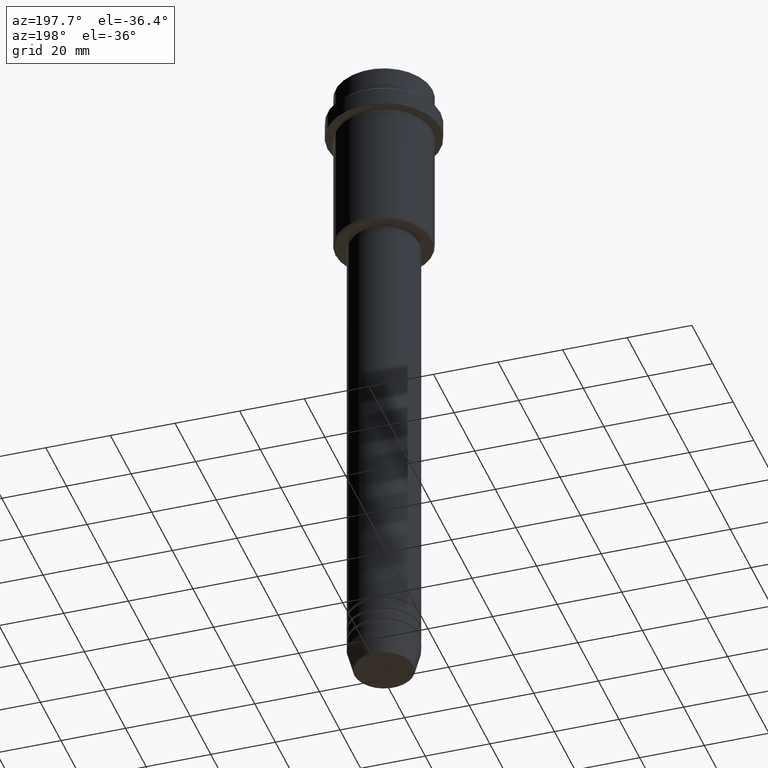
[diagram: clean part render]
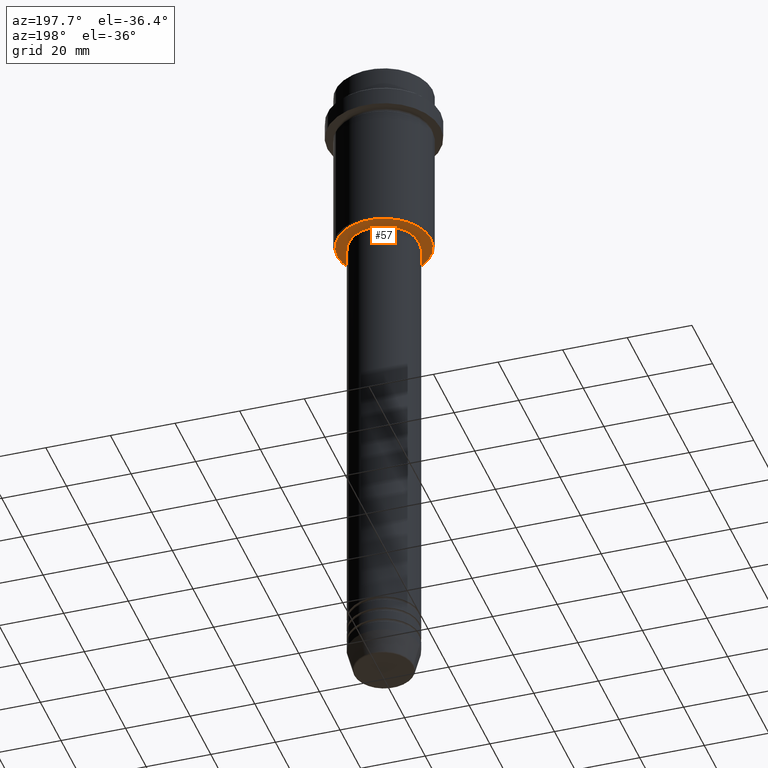
[diagram: same view with one face highlighted and labeled with its STEP entity id]
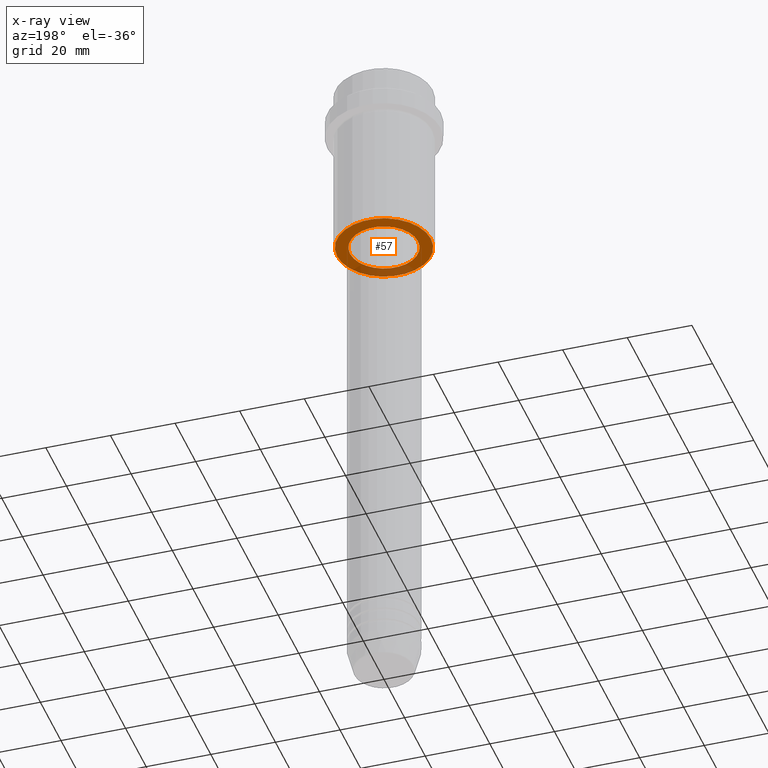
[diagram: x-ray of the same camera — body ghosted, the highlighted face saturated]
A machine part, auxiliary view. The second image highlights one B-rep face of the part: STEP entity #57.
The next image is the same camera in x-ray: the body ghosted, the highlighted face saturated — about 21% of this face is hidden behind the body in this view.
In plain terms, the highlighted planar face has unit normal (0, 0, -1).
Its self-contained STEP definition (entity closure, byte-faithful):
#5 = VERTEX_POINT ( 'NONE', #342 ) ;
#29 = ORIENTED_EDGE ( 'NONE', *, *, #176, .T. ) ;
#41 = DIRECTION ( 'NONE',  ( 1.000000000000000000, 0.000000000000000000, 0.000000000000000000 ) ) ;
#57 = ADVANCED_FACE ( 'NONE', ( #86, #757 ), #879, .T. ) ;
#59 = CARTESIAN_POINT ( 'NONE',  ( 0.000000000000000000, 0.000000000000000000, -55.00000000000002842 ) ) ;
#86 = FACE_OUTER_BOUND ( 'NONE', #1041, .T. ) ;
#111 = VERTEX_POINT ( 'NONE', #1075 ) ;
#153 = ORIENTED_EDGE ( 'NONE', *, *, #1343, .T. ) ;
#175 = DIRECTION ( 'NONE',  ( -0.000000000000000000, -0.000000000000000000, 1.000000000000000000 ) ) ;
#176 = EDGE_CURVE ( 'NONE', #111, #5, #759, .T. ) ;
#179 = CARTESIAN_POINT ( 'NONE',  ( 0.000000000000000000, 0.000000000000000000, -55.00000000000002842 ) ) ;
#241 = CARTESIAN_POINT ( 'NONE',  ( 0.000000000000000000, 0.000000000000000000, -55.00000000000002842 ) ) ;
#276 = CARTESIAN_POINT ( 'NONE',  ( 14.49999999999998401, 0.000000000000000000, -55.00000000000002842 ) ) ;
#282 = VERTEX_POINT ( 'NONE', #1395 ) ;
#342 = CARTESIAN_POINT ( 'NONE',  ( 10.49999999999999289, 0.000000000000000000, -55.00000000000002842 ) ) ;
#376 = AXIS2_PLACEMENT_3D ( 'NONE', #981, #966, #453 ) ;
#378 = CIRCLE ( 'NONE', #800, 10.49999999999999289 ) ;
#401 = CIRCLE ( 'NONE', #585, 14.49999999999998401 ) ;
#409 = DIRECTION ( 'NONE',  ( -1.000000000000000000, 0.000000000000000000, 0.000000000000000000 ) ) ;
#419 = DIRECTION ( 'NONE',  ( 0.000000000000000000, 0.000000000000000000, -1.000000000000000000 ) ) ;
#453 = DIRECTION ( 'NONE',  ( -1.000000000000000000, 0.000000000000000000, -0.000000000000000000 ) ) ;
#513 = CARTESIAN_POINT ( 'NONE',  ( 0.000000000000000000, 0.000000000000000000, -55.00000000000002842 ) ) ;
#576 = EDGE_LOOP ( 'NONE', ( #153, #29 ) ) ;
#577 = DIRECTION ( 'NONE',  ( -0.000000000000000000, -0.000000000000000000, 1.000000000000000000 ) ) ;
#585 = AXIS2_PLACEMENT_3D ( 'NONE', #59, #1265, #935 ) ;
#656 = DIRECTION ( 'NONE',  ( 1.000000000000000000, 0.000000000000000000, 0.000000000000000000 ) ) ;
#729 = CIRCLE ( 'NONE', #1231, 14.49999999999998401 ) ;
#757 = FACE_BOUND ( 'NONE', #576, .T. ) ;
#759 = CIRCLE ( 'NONE', #1194, 10.49999999999999289 ) ;
#788 = ORIENTED_EDGE ( 'NONE', *, *, #833, .T. ) ;
#800 = AXIS2_PLACEMENT_3D ( 'NONE', #241, #577, #656 ) ;
#833 = EDGE_CURVE ( 'NONE', #1095, #282, #729, .T. ) ;
#879 = PLANE ( 'NONE',  #376 ) ;
#935 = DIRECTION ( 'NONE',  ( -1.000000000000000000, 0.000000000000000000, 0.000000000000000000 ) ) ;
#966 = DIRECTION ( 'NONE',  ( 0.000000000000000000, 0.000000000000000000, -1.000000000000000000 ) ) ;
#977 = ORIENTED_EDGE ( 'NONE', *, *, #1190, .T. ) ;
#981 = CARTESIAN_POINT ( 'NONE',  ( 0.000000000000000000, 15.00000000000000000, -55.00000000000002842 ) ) ;
#1041 = EDGE_LOOP ( 'NONE', ( #788, #977 ) ) ;
#1075 = CARTESIAN_POINT ( 'NONE',  ( -10.49999999999999289, 1.285879139104720042E-15, -55.00000000000002842 ) ) ;
#1095 = VERTEX_POINT ( 'NONE', #276 ) ;
#1190 = EDGE_CURVE ( 'NONE', #282, #1095, #401, .T. ) ;
#1194 = AXIS2_PLACEMENT_3D ( 'NONE', #513, #175, #41 ) ;
#1231 = AXIS2_PLACEMENT_3D ( 'NONE', #179, #419, #409 ) ;
#1265 = DIRECTION ( 'NONE',  ( 0.000000000000000000, 0.000000000000000000, -1.000000000000000000 ) ) ;
#1343 = EDGE_CURVE ( 'NONE', #5, #111, #378, .T. ) ;
#1395 = CARTESIAN_POINT ( 'NONE',  ( -14.49999999999998401, 1.806354028742345013E-15, -55.00000000000002842 ) ) ;